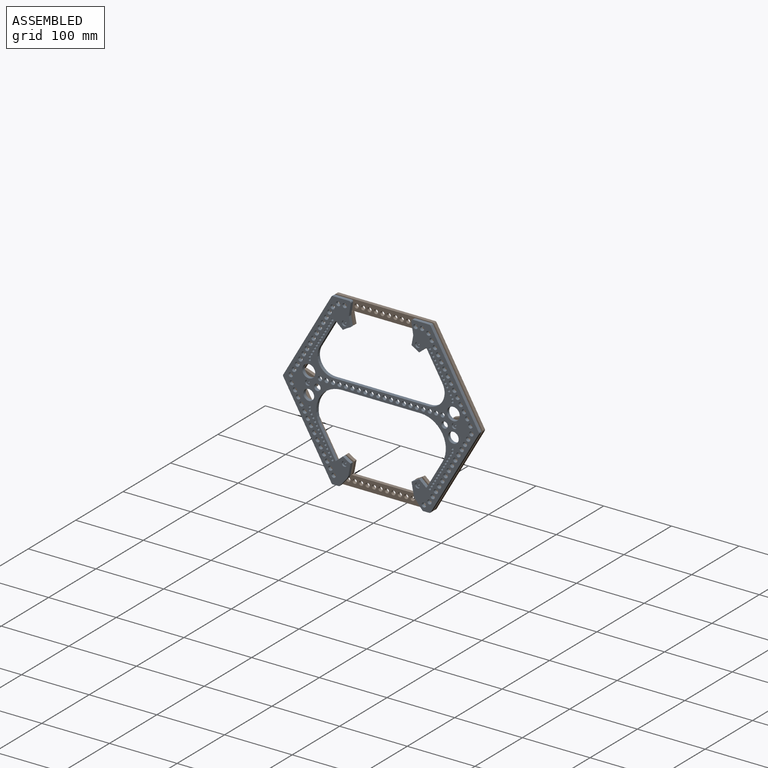
[diagram: assembled view]
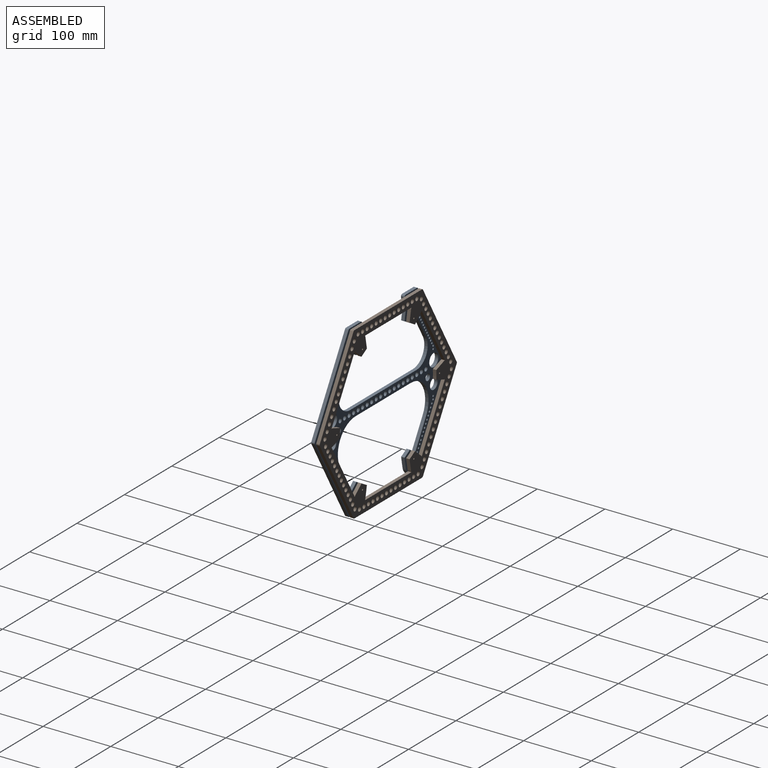
[diagram: assembled view, second angle]
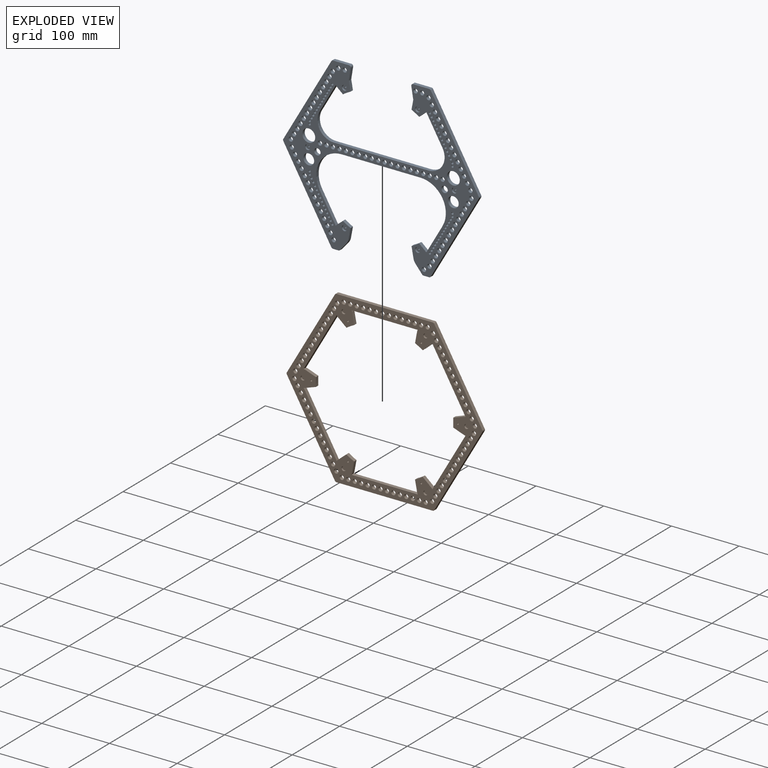
[diagram: exploded view]
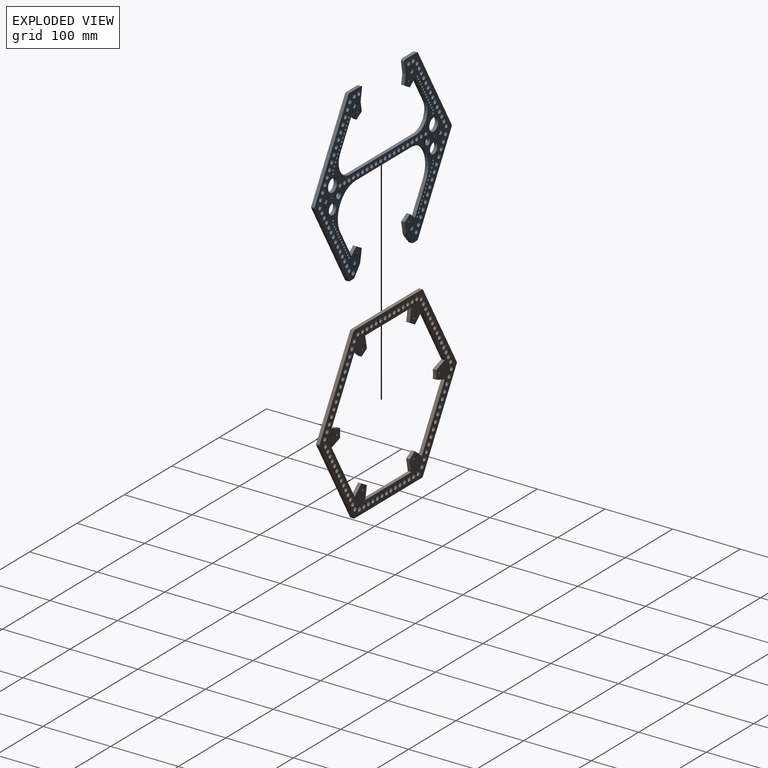
[diagram: exploded view, second angle]
ASSEMBLY  parts=2 mates=2
PART A: 225 faces, bbox 289.6x251.5x5.1 mm
  f0: plane 10.59x9.05mm, normal (-0.65,0.76,0), area 70.8mm2, adj f4,f19,f55,f161
  f1: plane 10.59x9.05mm, normal (0.65,0.76,0), area 70.8mm2, adj f4,f23,f55,f160
  f2: plane 10.59x9.05mm, normal (0.65,-0.76,0), area 70.8mm2, adj f4,f38,f55,f162
  f3: plane 10.59x9.05mm, normal (-0.65,-0.76,0), area 70.8mm2, adj f4,f42,f55,f159
  f4: plane 289.58x251.46mm, normal (0,0,-1), area 14964.6mm2, adj f0,f1,f2,f3,f5,f6,f7,f8
  f5: plane 13.85x5.08mm, normal (0.98,0.18,0), area 71.6mm2, adj f4,f6,f55,f159
  f6: plane 17.86x5.08mm, normal (0.99,-0.16,0), area 91.9mm2, adj f4,f5,f7,f55
  f7: cylinder r=2.54mm len=5.08mm, axis (0,0,-1), area 22.3mm2, adj f4,f6,f8,f55
  f8: plane 23.89x5.08mm, normal (0,1,0), area 121.4mm2, adj f4,f7,f9,f55
  f9: cylinder r=2.54mm len=5.08mm, axis (0,0,-1), area 13.5mm2, adj f4,f8,f10,f55
  f10: plane 123.19x71.12mm, normal (-0.87,0.5,0), area 722.6mm2, adj f4,f9,f11,f55
  f11: cylinder r=2.54mm len=5.08mm, axis (0,0,-1), area 13.5mm2, adj f4,f10,f12,f55
  f12: plane 123.19x71.12mm, normal (-0.87,-0.5,0), area 722.6mm2, adj f4,f11,f13,f55
  f13: cylinder r=2.54mm len=5.08mm, axis (0,0,-1), area 13.5mm2, adj f4,f12,f14,f55
  f14: plane 8.44x5.08mm, normal (0,-1,0), area 42.9mm2, adj f4,f13,f15,f55
  f15: cylinder r=2.54mm len=5.08mm, axis (0,0,-1), area 11.3mm2, adj f4,f14,f16,f55
  f16: plane 11.88x9.97mm, normal (0.77,-0.64,0), area 78.8mm2, adj f4,f15,f17,f55
  f17: cylinder r=12.7mm len=5.84mm, axis (0,0,-1), area 33.2mm2, adj f4,f16,f18,f55
  f18: plane 16.02x5.08mm, normal (0.98,-0.18,0), area 82.8mm2, adj f4,f17,f55,f161
  f19: plane 41.2x23.79mm, normal (0.87,0.5,0), area 241.7mm2, adj f0,f4,f20,f55
  f20: cylinder r=37.5mm len=56.24mm, axis (0,0,-1), area 398.9mm2, adj f4,f19,f21,f55
  f21: plane 116.53x5.08mm, normal (0,-1,0), area 592mm2, adj f4,f20,f22,f55
  f22: cylinder r=37.5mm len=56.24mm, axis (0,0,-1), area 398.9mm2, adj f4,f21,f23,f55
  f23: plane 41.2x23.79mm, normal (-0.87,0.5,0), area 241.7mm2, adj f1,f4,f22,f55
  f24: plane 16.02x5.08mm, normal (-0.98,-0.18,0), area 82.8mm2, adj f4,f25,f55,f160
  f25: cylinder r=12.7mm len=5.84mm, axis (0,0,-1), area 33.2mm2, adj f4,f24,f26,f55
  f26: plane 11.88x9.97mm, normal (-0.77,-0.64,0), area 78.8mm2, adj f4,f25,f27,f55
  f27: cylinder r=2.54mm len=5.08mm, axis (0,0,-1), area 11.3mm2, adj f4,f26,f28,f55
  f28: plane 8.44x5.08mm, normal (0,-1,0), area 42.9mm2, adj f4,f27,f29,f55
  f29: cylinder r=2.54mm len=5.08mm, axis (0,0,-1), area 13.5mm2, adj f4,f28,f30,f55
  f30: plane 123.19x71.12mm, normal (0.87,-0.5,0), area 722.6mm2, adj f4,f29,f31,f55
  f31: cylinder r=2.54mm len=5.08mm, axis (0,0,-1), area 13.5mm2, adj f4,f30,f32,f55
  f32: plane 123.19x71.12mm, normal (0.87,0.5,0), area 722.6mm2, adj f4,f31,f33,f55
  f33: cylinder r=2.54mm len=5.08mm, axis (0,0,-1), area 13.5mm2, adj f4,f32,f34,f55
  f34: plane 23.89x5.08mm, normal (0,1,0), area 121.4mm2, adj f4,f33,f35,f55
  f35: cylinder r=2.54mm len=5.08mm, axis (0,0,-1), area 22.3mm2, adj f4,f34,f36,f55
  f36: plane 17.86x5.08mm, normal (-0.99,-0.16,0), area 91.9mm2, adj f4,f35,f37,f55
  f37: plane 13.85x5.08mm, normal (-0.98,0.18,0), area 71.6mm2, adj f4,f36,f55,f162
  f38: plane 41.2x23.79mm, normal (-0.87,-0.5,0), area 241.7mm2, adj f2,f4,f39,f55
  f39: cylinder r=23.92mm len=35.88mm, axis (0,0,-1), area 254.5mm2, adj f4,f38,f40,f55
  f40: plane 140.04x5.08mm, normal (0,1,0), area 711.4mm2, adj f4,f39,f41,f55
  f41: cylinder r=23.92mm len=35.88mm, axis (0,0,-1), area 254.5mm2, adj f4,f40,f42,f55
  f42: plane 41.2x23.79mm, normal (0.87,-0.5,0), area 241.7mm2, adj f3,f4,f41,f55
  f43: cylinder r=1.08mm len=2.54mm, axis (0,0,-1), area 17.2mm2, adj f55,f73
  f44: cylinder r=1.08mm len=2.54mm, axis (0,0,-1), area 17.2mm2, adj f55,f71
  f45: cylinder r=1.08mm len=2.54mm, axis (0,0,-1), area 17.2mm2, adj f55,f69
  f46: cylinder r=3.17mm len=6.35mm, axis (0,0,-1), area 50.7mm2, adj f55,f60
  f47: cylinder r=3.17mm len=6.35mm, axis (0,0,-1), area 50.7mm2, adj f55,f57
  f48: cylinder r=3.17mm len=6.35mm, axis (0,0,-1), area 50.7mm2, adj f55,f59
  f49: cylinder r=3.17mm len=6.35mm, axis (0,0,-1), area 50.7mm2, adj f55,f61
  f50: cylinder r=1.08mm len=2.54mm, axis (0,0,-1), area 17.2mm2, adj f55,f67
  f51: cylinder r=1.08mm len=2.54mm, axis (0,0,-1), area 17.2mm2, adj f55,f65
  f52: cylinder r=3.17mm len=6.35mm, axis (0,0,-1), area 50.7mm2, adj f55,f56
  f53: cylinder r=3.17mm len=6.35mm, axis (0,0,-1), area 50.7mm2, adj f55,f58
  f54: cylinder r=1.08mm len=2.54mm, axis (0,0,-1), area 17.2mm2, adj f55,f63
  f55: plane 289.58x251.46mm, normal (0,0,1), area 15026.2mm2, adj f0,f1,f2,f3,f5,f6,f7,f8
  f56: plane 6.35x6.35mm, normal (0,0,1), area 31.7mm2, adj f52
  f57: plane 6.35x6.35mm, normal (0,0,1), area 31.7mm2, adj f47
  f58: plane 6.35x6.35mm, normal (0,0,1), area 31.7mm2, adj f53
  f59: plane 6.35x6.35mm, normal (0,0,1), area 31.7mm2, adj f48
  f60: plane 6.35x6.35mm, normal (0,0,1), area 31.7mm2, adj f46
  f61: plane 6.35x6.35mm, normal (0,0,1), area 31.7mm2, adj f49
  f62: cylinder r=3.81mm len=7.62mm, axis (0,0,-1), area 60.8mm2, adj f4,f63
  f63: plane 7.62x7.62mm, normal (0,0,-1), area 41.9mm2, adj f54,f62
  f64: cylinder r=3.81mm len=7.62mm, axis (0,0,-1), area 60.8mm2, adj f4,f65
  f65: plane 7.62x7.62mm, normal (0,0,-1), area 41.9mm2, adj f51,f64
  f66: cylinder r=3.81mm len=7.62mm, axis (0,0,-1), area 60.8mm2, adj f4,f67
  f67: plane 7.62x7.62mm, normal (0,0,-1), area 41.9mm2, adj f50,f66
  f68: cylinder r=3.81mm len=7.62mm, axis (0,0,-1), area 60.8mm2, adj f4,f69
  f69: plane 7.62x7.62mm, normal (0,0,-1), area 41.9mm2, adj f45,f68
  f70: cylinder r=3.81mm len=7.62mm, axis (0,0,-1), area 60.8mm2, adj f4,f71
  f71: plane 7.62x7.62mm, normal (0,0,-1), area 41.9mm2, adj f44,f70
  f72: cylinder r=3.81mm len=7.62mm, axis (0,0,-1), area 60.8mm2, adj f4,f73
  f73: plane 7.62x7.62mm, normal (0,0,-1), area 41.9mm2, adj f43,f72
  f74: cylinder r=3.17mm len=6.35mm, axis (0,0,1), area 101.3mm2, adj f4,f55
  f75: cylinder r=3.17mm len=6.35mm, axis (0,0,1), area 101.3mm2, adj f4,f55
  f76: cylinder r=3.17mm len=6.35mm, axis (0,0,1), area 101.3mm2, adj f4,f55
  f77: cylinder r=3.17mm len=6.35mm, axis (0,0,1), area 101.3mm2, adj f4,f55
  f78: cylinder r=3.17mm len=6.35mm, axis (0,0,1), area 101.3mm2, adj f4,f55
  f79: cylinder r=3.17mm len=6.35mm, axis (0,0,1), area 101.3mm2, adj f4,f55
  f80: cylinder r=3.17mm len=6.35mm, axis (0,0,1), area 101.3mm2, adj f4,f55
  f81: cylinder r=3.17mm len=6.35mm, axis (0,0,1), area 101.3mm2, adj f4,f55
  f82: cylinder r=3.17mm len=6.35mm, axis (0,0,1), area 101.3mm2, adj f4,f55
  f83: cylinder r=3.17mm len=6.35mm, axis (0,0,1), area 101.3mm2, adj f4,f55
  f84: cylinder r=3.17mm len=6.35mm, axis (0,0,1), area 101.3mm2, adj f4,f55
  f85: cylinder r=3.17mm len=6.35mm, axis (0,0,1), area 101.3mm2, adj f4,f55
  f86: cylinder r=3.17mm len=6.35mm, axis (0,0,1), area 101.3mm2, adj f4,f55
  f87: cylinder r=3.17mm len=6.35mm, axis (0,0,1), area 101.3mm2, adj f4,f55
  f88: cylinder r=3.17mm len=6.35mm, axis (0,0,1), area 101.3mm2, adj f4,f55
  f89: cylinder r=3.17mm len=6.35mm, axis (0,0,1), area 101.3mm2, adj f4,f55
  f90: cylinder r=3.17mm len=6.35mm, axis (0,0,1), area 101.3mm2, adj f4,f55
  f91: cylinder r=7.94mm len=15.88mm, axis (0,0,1), area 253.4mm2, adj f4,f55
  f92: cylinder r=9.53mm len=19.05mm, axis (0,0,1), area 304mm2, adj f4,f55
  f93: cylinder r=9.53mm len=19.05mm, axis (0,0,1), area 304mm2, adj f4,f55
  f94: cylinder r=7.94mm len=15.88mm, axis (0,0,1), area 253.4mm2, adj f4,f55
  f95: cylinder r=3.17mm len=6.35mm, axis (0,0,1), area 101.3mm2, adj f4,f55
  f96: cylinder r=3.17mm len=6.35mm, axis (0,0,1), area 101.3mm2, adj f4,f55
  f97: cylinder r=3.17mm len=6.35mm, axis (0,0,1), area 101.3mm2, adj f4,f55
  f98: cylinder r=3.17mm len=6.35mm, axis (0,0,1), area 101.3mm2, adj f4,f55
  f99: cylinder r=3.17mm len=6.35mm, axis (0,0,1), area 101.3mm2, adj f4,f55
  f100: cylinder r=3.17mm len=6.35mm, axis (0,0,1), area 101.3mm2, adj f4,f55
  f101: cylinder r=3.17mm len=6.35mm, axis (0,0,1), area 101.3mm2, adj f4,f55
  f102: cylinder r=3.17mm len=6.35mm, axis (0,0,1), area 101.3mm2, adj f4,f55
  f103: cylinder r=3.17mm len=6.35mm, axis (0,0,1), area 101.3mm2, adj f4,f55
  f104: cylinder r=3.17mm len=6.35mm, axis (0,0,1), area 101.3mm2, adj f4,f55
  f105: cylinder r=3.17mm len=6.35mm, axis (0,0,1), area 101.3mm2, adj f4,f55
  f106: cylinder r=3.17mm len=6.35mm, axis (0,0,1), area 101.3mm2, adj f4,f55
  f107: cylinder r=3.17mm len=6.35mm, axis (0,0,1), area 101.3mm2, adj f4,f55
  f108: cylinder r=3.17mm len=6.35mm, axis (0,0,1), area 101.3mm2, adj f4,f55
  f109: cylinder r=3.17mm len=6.35mm, axis (0,0,1), area 101.3mm2, adj f4,f55
  f110: cylinder r=3.17mm len=6.35mm, axis (0,0,1), area 101.3mm2, adj f4,f55
  f111: cylinder r=3.17mm len=6.35mm, axis (0,0,1), area 101.3mm2, adj f4,f55
  f112: cylinder r=3.17mm len=6.35mm, axis (0,0,1), area 101.3mm2, adj f4,f55
  f113: cylinder r=3.17mm len=6.35mm, axis (0,0,1), area 101.3mm2, adj f4,f55
  f114: cylinder r=3.17mm len=6.35mm, axis (0,0,1), area 101.3mm2, adj f4,f55
  f115: cylinder r=3.17mm len=6.35mm, axis (0,0,1), area 101.3mm2, adj f4,f55
  f116: cylinder r=3.17mm len=6.35mm, axis (0,0,1), area 101.3mm2, adj f4,f55
  f117: cylinder r=3.17mm len=6.35mm, axis (0,0,1), area 101.3mm2, adj f4,f55
  f118: cylinder r=3.17mm len=6.35mm, axis (0,0,1), area 101.3mm2, adj f4,f55
  f119: cylinder r=3.17mm len=6.35mm, axis (0,0,1), area 101.3mm2, adj f4,f55
  f120: cylinder r=3.17mm len=6.35mm, axis (0,0,1), area 101.3mm2, adj f4,f55
  f121: cylinder r=3.17mm len=6.35mm, axis (0,0,1), area 101.3mm2, adj f4,f55
  f122: cylinder r=3.17mm len=6.35mm, axis (0,0,1), area 101.3mm2, adj f4,f55
  f123: cylinder r=3.17mm len=6.35mm, axis (0,0,1), area 101.3mm2, adj f4,f55
  f124: cylinder r=3.17mm len=6.35mm, axis (0,0,1), area 101.3mm2, adj f4,f55
  f125: cylinder r=3.17mm len=6.35mm, axis (0,0,1), area 101.3mm2, adj f4,f55
  f126: cylinder r=3.17mm len=6.35mm, axis (0,0,1), area 101.3mm2, adj f4,f55
  f127: cylinder r=3.17mm len=6.35mm, axis (0,0,1), area 101.3mm2, adj f4,f55
  f128: cylinder r=3.17mm len=6.35mm, axis (0,0,1), area 101.3mm2, adj f4,f55
  f129: cylinder r=3.17mm len=6.35mm, axis (0,0,1), area 101.3mm2, adj f4,f55
  f130: cylinder r=3.17mm len=6.35mm, axis (0,0,1), area 101.3mm2, adj f4,f55
  f131: cylinder r=3.17mm len=6.35mm, axis (0,0,1), area 101.3mm2, adj f4,f55
  f132: cylinder r=3.17mm len=6.35mm, axis (0,0,1), area 101.3mm2, adj f4,f55
  f133: cylinder r=3.17mm len=6.35mm, axis (0,0,1), area 101.3mm2, adj f4,f55
  f134: cylinder r=3.17mm len=6.35mm, axis (0,0,1), area 101.3mm2, adj f4,f55
  f135: cylinder r=3.17mm len=6.35mm, axis (0,0,1), area 101.3mm2, adj f4,f55
  f136: cylinder r=3.17mm len=6.35mm, axis (0,0,1), area 101.3mm2, adj f4,f55
  f137: cylinder r=3.17mm len=6.35mm, axis (0,0,1), area 101.3mm2, adj f4,f55
  f138: cylinder r=3.17mm len=6.35mm, axis (0,0,1), area 101.3mm2, adj f4,f55
  f139: cylinder r=3.17mm len=6.35mm, axis (0,0,1), area 101.3mm2, adj f4,f55
  f140: cylinder r=3.17mm len=6.35mm, axis (0,0,1), area 101.3mm2, adj f4,f55
  f141: cylinder r=3.17mm len=6.35mm, axis (0,0,1), area 101.3mm2, adj f4,f55
  f142: cylinder r=3.17mm len=6.35mm, axis (0,0,1), area 101.3mm2, adj f4,f55
  f143: cylinder r=3.17mm len=6.35mm, axis (0,0,1), area 101.3mm2, adj f4,f55
  f144: cylinder r=3.17mm len=6.35mm, axis (0,0,1), area 101.3mm2, adj f4,f55
  f145: cylinder r=3.17mm len=6.35mm, axis (0,0,1), area 101.3mm2, adj f4,f55
  f146: cylinder r=3.17mm len=6.35mm, axis (0,0,1), area 101.3mm2, adj f4,f55
  f147: cylinder r=3.17mm len=6.35mm, axis (0,0,1), area 101.3mm2, adj f4,f55
  f148: cylinder r=3.17mm len=6.35mm, axis (0,0,1), area 101.3mm2, adj f4,f55
  f149: cylinder r=3.17mm len=6.35mm, axis (0,0,1), area 101.3mm2, adj f4,f55
  f150: cylinder r=3.17mm len=6.35mm, axis (0,0,1), area 101.3mm2, adj f4,f55
  f151: cylinder r=3.17mm len=6.35mm, axis (0,0,1), area 101.3mm2, adj f4,f55
  f152: cylinder r=3.17mm len=6.35mm, axis (0,0,1), area 101.3mm2, adj f4,f55
  f153: cylinder r=3.17mm len=6.35mm, axis (0,0,1), area 101.3mm2, adj f4,f55
  f154: cylinder r=3.17mm len=6.35mm, axis (0,0,1), area 101.3mm2, adj f4,f55
  f155: cylinder r=3.17mm len=6.35mm, axis (0,0,1), area 101.3mm2, adj f4,f55
  f156: cylinder r=3.17mm len=6.35mm, axis (0,0,1), area 101.3mm2, adj f4,f55
  f157: cylinder r=3.17mm len=6.35mm, axis (0,0,1), area 101.3mm2, adj f4,f55
  f158: cylinder r=3.17mm len=6.35mm, axis (0,0,1), area 101.3mm2, adj f4,f55
  f159: cylinder r=101.6mm len=11.33mm, axis (0,0,1), area 66.5mm2, adj f3,f4,f5,f55
  f160: cylinder r=101.6mm len=11.33mm, axis (0,0,1), area 66.5mm2, adj f1,f4,f24,f55
  f161: cylinder r=101.6mm len=11.33mm, axis (0,0,1), area 66.5mm2, adj f0,f4,f18,f55
  f162: cylinder r=101.6mm len=11.33mm, axis (0,0,1), area 66.5mm2, adj f2,f4,f37,f55
  f163: cylinder r=1.59mm len=5.08mm, axis (0,0,1), area 50.7mm2, adj f4,f55
  f164: cylinder r=1.59mm len=5.08mm, axis (0,0,1), area 50.7mm2, adj f4,f55
  f165: cylinder r=1.59mm len=5.08mm, axis (0,0,1), area 50.7mm2, adj f4,f55
  f166: cylinder r=1.59mm len=5.08mm, axis (0,0,1), area 50.7mm2, adj f4,f55
  f167: cylinder r=1.59mm len=5.08mm, axis (0,0,1), area 50.7mm2, adj f4,f55
  f168: cylinder r=1.59mm len=5.08mm, axis (0,0,1), area 50.7mm2, adj f4,f55
  f169: cylinder r=1.59mm len=5.08mm, axis (0,0,1), area 50.7mm2, adj f4,f55
  f170: cylinder r=1.59mm len=5.08mm, axis (0,0,1), area 50.7mm2, adj f4,f55
  f171: cylinder r=1.59mm len=5.08mm, axis (0,0,1), area 50.7mm2, adj f4,f55
  f172: cylinder r=1.59mm len=5.08mm, axis (0,0,1), area 50.7mm2, adj f4,f55
  f173: cylinder r=1.59mm len=5.08mm, axis (0,0,1), area 50.7mm2, adj f4,f55
  f174: cylinder r=1.59mm len=5.08mm, axis (0,0,1), area 50.7mm2, adj f4,f55
  f175: cylinder r=1.59mm len=5.08mm, axis (0,0,1), area 50.7mm2, adj f4,f55
  f176: cylinder r=1.59mm len=5.08mm, axis (0,0,1), area 50.7mm2, adj f4,f55
  f177: cylinder r=1.59mm len=5.08mm, axis (0,0,1), area 50.7mm2, adj f4,f55
  f178: cylinder r=1.59mm len=5.08mm, axis (0,0,1), area 50.7mm2, adj f4,f55
  f179: cylinder r=1.59mm len=5.08mm, axis (0,0,1), area 50.7mm2, adj f4,f55
  f180: cylinder r=1.59mm len=5.08mm, axis (0,0,1), area 50.7mm2, adj f4,f55
  f181: cylinder r=1.59mm len=5.08mm, axis (0,0,1), area 50.7mm2, adj f4,f55
  f182: cylinder r=1.59mm len=5.08mm, axis (0,0,1), area 50.7mm2, adj f4,f55
  f183: cylinder r=1.59mm len=5.08mm, axis (0,0,1), area 50.7mm2, adj f4,f55
  f184: cylinder r=1.59mm len=5.08mm, axis (0,0,1), area 50.7mm2, adj f4,f55
  f185: cylinder r=1.59mm len=5.08mm, axis (0,0,1), area 50.7mm2, adj f4,f55
  f186: cylinder r=1.59mm len=5.08mm, axis (0,0,1), area 50.7mm2, adj f4,f55
  f187: cylinder r=1.59mm len=5.08mm, axis (0,0,1), area 50.7mm2, adj f4,f55
  f188: cylinder r=1.59mm len=5.08mm, axis (0,0,1), area 50.7mm2, adj f4,f55
  f189: cylinder r=1.59mm len=5.08mm, axis (0,0,1), area 50.7mm2, adj f4,f55
  f190: cylinder r=1.59mm len=5.08mm, axis (0,0,1), area 50.7mm2, adj f4,f55
  f191: cylinder r=1.59mm len=5.08mm, axis (0,0,1), area 50.7mm2, adj f4,f55
  f192: cylinder r=1.59mm len=5.08mm, axis (0,0,1), area 50.7mm2, adj f4,f55
  f193: cylinder r=1.59mm len=5.08mm, axis (0,0,1), area 50.7mm2, adj f4,f55
  f194: cylinder r=1.59mm len=5.08mm, axis (0,0,1), area 50.7mm2, adj f4,f55
  f195: cylinder r=1.59mm len=5.08mm, axis (0,0,1), area 50.7mm2, adj f4,f55
  f196: cylinder r=1.59mm len=5.08mm, axis (0,0,1), area 50.7mm2, adj f4,f55
  f197: cylinder r=1.59mm len=5.08mm, axis (0,0,1), area 50.7mm2, adj f4,f55
  f198: cylinder r=1.59mm len=5.08mm, axis (0,0,1), area 50.7mm2, adj f4,f55
  f199: cylinder r=1.59mm len=5.08mm, axis (0,0,1), area 50.7mm2, adj f4,f55
  f200: cylinder r=1.59mm len=5.08mm, axis (0,0,1), area 50.7mm2, adj f4,f55
  f201: cylinder r=1.59mm len=5.08mm, axis (0,0,1), area 50.7mm2, adj f4,f55
  f202: cylinder r=1.59mm len=5.08mm, axis (0,0,1), area 50.7mm2, adj f4,f55
  f203: cylinder r=1.59mm len=5.08mm, axis (0,0,1), area 50.7mm2, adj f4,f55
  f204: cylinder r=1.59mm len=5.08mm, axis (0,0,1), area 50.7mm2, adj f4,f55
  f205: cylinder r=1.59mm len=5.08mm, axis (0,0,1), area 50.7mm2, adj f4,f55
  f206: cylinder r=1.59mm len=5.08mm, axis (0,0,1), area 50.7mm2, adj f4,f55
  f207: cylinder r=1.59mm len=5.08mm, axis (0,0,1), area 50.7mm2, adj f4,f55
  f208: cylinder r=1.59mm len=5.08mm, axis (0,0,1), area 50.7mm2, adj f4,f55
  f209: cylinder r=1.59mm len=5.08mm, axis (0,0,1), area 50.7mm2, adj f4,f55
  f210: cylinder r=1.59mm len=5.08mm, axis (0,0,1), area 50.7mm2, adj f4,f55
  f211: cylinder r=1.59mm len=5.08mm, axis (0,0,1), area 50.7mm2, adj f4,f55
  f212: cylinder r=1.59mm len=5.08mm, axis (0,0,1), area 50.7mm2, adj f4,f55
  f213: cylinder r=1.59mm len=5.08mm, axis (0,0,1), area 50.7mm2, adj f4,f55
  f214: cylinder r=1.59mm len=5.08mm, axis (0,0,1), area 50.7mm2, adj f4,f55
  f215: cylinder r=1.59mm len=5.08mm, axis (0,0,1), area 50.7mm2, adj f4,f55
  f216: cylinder r=1.59mm len=5.08mm, axis (0,0,1), area 50.7mm2, adj f4,f55
  f217: cylinder r=1.59mm len=5.08mm, axis (0,0,1), area 50.7mm2, adj f4,f55
  f218: cylinder r=1.59mm len=5.08mm, axis (0,0,1), area 50.7mm2, adj f4,f55
  f219: cylinder r=1.59mm len=5.08mm, axis (0,0,1), area 50.7mm2, adj f4,f55
  f220: cylinder r=1.59mm len=5.08mm, axis (0,0,1), area 50.7mm2, adj f4,f55
  f221: cylinder r=1.59mm len=5.08mm, axis (0,0,1), area 50.7mm2, adj f4,f55
  f222: cylinder r=1.59mm len=5.08mm, axis (0,0,1), area 50.7mm2, adj f4,f55
  f223: cylinder r=4.76mm len=9.53mm, axis (0,0,1), area 152mm2, adj f4,f55
  f224: cylinder r=4.76mm len=9.53mm, axis (0,0,1), area 152mm2, adj f4,f55
PART B: 158 faces, bbox 289.6x5.1x251.5 mm
  f0: plane 289.58x251.46mm, normal (0,1,0), area 12929.7mm2, adj f1,f2,f3,f4,f5,f6,f7,f8
  f1: plane 142.25x5.08mm, normal (0,0,-1), area 722.6mm2, adj f0,f2,f60,f61
  f2: cylinder r=2.54mm len=5.08mm, axis (0,1,0), area 13.5mm2, adj f0,f1,f3,f61
  f3: plane 123.19x71.12mm, normal (0.87,0,-0.5), area 722.6mm2, adj f0,f2,f4,f61
  f4: cylinder r=2.54mm len=5.08mm, axis (0,1,0), area 13.5mm2, adj f0,f3,f5,f61
  f5: plane 123.19x71.12mm, normal (0.87,0,0.5), area 722.6mm2, adj f0,f4,f6,f61
  f6: cylinder r=2.54mm len=5.08mm, axis (0,1,0), area 13.5mm2, adj f0,f5,f7,f61
  f7: plane 142.25x5.08mm, normal (0,0,1), area 722.6mm2, adj f0,f6,f8,f61
  f8: cylinder r=2.54mm len=5.08mm, axis (0,1,0), area 13.5mm2, adj f0,f7,f9,f61
  f9: plane 123.19x71.12mm, normal (-0.87,0,0.5), area 722.6mm2, adj f0,f8,f10,f61
  f10: cylinder r=2.54mm len=5.08mm, axis (0,1,0), area 13.5mm2, adj f0,f9,f11,f61
  f11: plane 123.19x71.12mm, normal (-0.87,0,-0.5), area 722.6mm2, adj f0,f10,f60,f61
  f12: cylinder r=12.7mm len=5.08mm, axis (0,1,0), area 26.5mm2, adj f0,f13,f59,f61
  f13: plane 97.7x5.08mm, normal (0,0,-1), area 496.3mm2, adj f0,f12,f14,f61
  f14: cylinder r=12.7mm len=5.08mm, axis (0,1,0), area 14.7mm2, adj f0,f13,f15,f61
  f15: plane 16.02x5.08mm, normal (-0.98,0,0.18), area 82.8mm2, adj f0,f14,f61,f157
  f16: plane 11.49x9.83mm, normal (0.65,0,-0.76), area 76.8mm2, adj f0,f17,f61,f157
  f17: plane 5.08x1.01mm, normal (-0.5,0,0.87), area 5.9mm2, adj f0,f16,f18,f61
  f18: cylinder r=12.7mm len=5.08mm, axis (0,1,0), area 26.5mm2, adj f0,f17,f19,f61
  f19: plane 84.61x48.85mm, normal (-0.87,0,-0.5), area 496.3mm2, adj f0,f18,f20,f61
  f20: cylinder r=12.7mm len=5.08mm, axis (0,1,0), area 14.7mm2, adj f0,f19,f21,f61
  f21: plane 15.36x5.43mm, normal (-0.33,0,0.94), area 82.8mm2, adj f0,f20,f61,f156
  f22: plane 14.26x5.08mm, normal (-0.33,0,-0.94), area 76.8mm2, adj f0,f23,f61,f156
  f23: plane 5.08x1.01mm, normal (0.5,0,0.87), area 5.9mm2, adj f0,f22,f24,f61
  f24: cylinder r=12.7mm len=5.08mm, axis (0,1,0), area 26.5mm2, adj f0,f23,f25,f61
  f25: plane 84.61x48.85mm, normal (-0.87,0,0.5), area 496.3mm2, adj f0,f24,f26,f61
  f26: cylinder r=12.7mm len=5.08mm, axis (0,1,0), area 26.5mm2, adj f0,f25,f27,f61
  f27: plane 5.08x1.01mm, normal (-0.5,0,-0.87), area 5.9mm2, adj f0,f26,f28,f61
  f28: plane 11.49x9.83mm, normal (0.65,0,0.76), area 76.8mm2, adj f0,f27,f61,f155
  f29: plane 16.02x5.08mm, normal (-0.98,0,-0.18), area 82.8mm2, adj f0,f30,f61,f155
  f30: cylinder r=12.7mm len=5.08mm, axis (0,1,0), area 14.7mm2, adj f0,f29,f31,f61
  f31: plane 97.7x5.08mm, normal (0,0,1), area 496.3mm2, adj f0,f30,f32,f61
  f32: cylinder r=12.7mm len=5.08mm, axis (0,1,0), area 14.7mm2, adj f0,f31,f33,f61
  f33: plane 16.02x5.08mm, normal (0.98,0,-0.18), area 82.8mm2, adj f0,f32,f61,f154
  f34: plane 11.49x9.83mm, normal (-0.65,0,0.76), area 76.8mm2, adj f0,f35,f61,f154
  f35: plane 5.08x1.01mm, normal (0.5,0,-0.87), area 5.9mm2, adj f0,f34,f36,f61
  f36: cylinder r=12.7mm len=5.08mm, axis (0,1,0), area 26.5mm2, adj f0,f35,f37,f61
  f37: plane 84.61x48.85mm, normal (0.87,0,0.5), area 496.3mm2, adj f0,f36,f38,f61
  f38: cylinder r=12.7mm len=5.08mm, axis (0,1,0), area 26.5mm2, adj f0,f37,f39,f61
  f39: plane 5.08x1.01mm, normal (-0.5,0,0.87), area 5.9mm2, adj f0,f38,f40,f61
  f40: plane 14.26x5.08mm, normal (0.33,0,-0.94), area 76.8mm2, adj f0,f39,f61,f153
  f41: plane 15.36x5.43mm, normal (0.33,0,0.94), area 82.8mm2, adj f0,f42,f61,f153
  f42: cylinder r=12.7mm len=5.08mm, axis (0,1,0), area 14.7mm2, adj f0,f41,f43,f61
  f43: plane 84.61x48.85mm, normal (0.87,0,-0.5), area 496.3mm2, adj f0,f42,f44,f61
  f44: cylinder r=12.7mm len=5.08mm, axis (0,1,0), area 14.7mm2, adj f0,f43,f45,f61
  f45: plane 12.38x10.59mm, normal (-0.65,0,-0.76), area 82.8mm2, adj f0,f44,f61,f152
  f46: plane 14.87x5.08mm, normal (0.98,0,0.18), area 76.8mm2, adj f0,f59,f61,f152
  f47: cylinder r=3.17mm len=6.35mm, axis (0,1,0), area 50.7mm2, adj f61,f65
  f48: cylinder r=1.21mm len=5.08mm, axis (0,1,0), area 38.5mm2, adj f0,f61
  f49: cylinder r=3.17mm len=6.35mm, axis (0,1,0), area 50.7mm2, adj f61,f66
  f50: cylinder r=1.21mm len=5.08mm, axis (0,1,0), area 38.5mm2, adj f0,f61
  f51: cylinder r=3.17mm len=6.35mm, axis (0,1,0), area 50.7mm2, adj f61,f67
  f52: cylinder r=1.21mm len=5.08mm, axis (0,1,0), area 38.5mm2, adj f0,f61
  f53: cylinder r=3.17mm len=6.35mm, axis (0,1,0), area 50.7mm2, adj f61,f64
  f54: cylinder r=1.21mm len=5.08mm, axis (0,1,0), area 38.5mm2, adj f0,f61
  f55: cylinder r=3.17mm len=6.35mm, axis (0,1,0), area 50.7mm2, adj f61,f63
  f56: cylinder r=1.21mm len=5.08mm, axis (0,1,0), area 38.5mm2, adj f0,f61
  f57: cylinder r=3.17mm len=6.35mm, axis (0,1,0), area 50.7mm2, adj f61,f62
  f58: cylinder r=1.21mm len=5.08mm, axis (0,1,0), area 38.5mm2, adj f0,f61
  f59: plane 5.08x1.17mm, normal (-1,0,0), area 5.9mm2, adj f0,f12,f46,f61
  f60: cylinder r=2.54mm len=5.08mm, axis (0,1,0), area 13.5mm2, adj f0,f1,f11,f61
  f61: plane 289.58x251.46mm, normal (0,-1,0), area 12739.7mm2, adj f1,f2,f3,f4,f5,f6,f7,f8
  f62: plane 6.35x6.35mm, normal (0,-1,0), area 31.7mm2, adj f57
  f63: plane 6.35x6.35mm, normal (0,-1,0), area 31.7mm2, adj f55
  f64: plane 6.35x6.35mm, normal (0,-1,0), area 31.7mm2, adj f53
  f65: plane 6.35x6.35mm, normal (0,-1,0), area 31.7mm2, adj f47
  f66: plane 6.35x6.35mm, normal (0,-1,0), area 31.7mm2, adj f49
  f67: plane 6.35x6.35mm, normal (0,-1,0), area 31.7mm2, adj f51
  f68: cylinder r=3.17mm len=6.35mm, axis (0,-1,0), area 101.3mm2, adj f0,f61
  f69: cylinder r=3.17mm len=6.35mm, axis (0,-1,0), area 101.3mm2, adj f0,f61
  f70: cylinder r=3.17mm len=6.35mm, axis (0,-1,0), area 101.3mm2, adj f0,f61
  f71: cylinder r=3.17mm len=6.35mm, axis (0,-1,0), area 101.3mm2, adj f0,f61
  f72: cylinder r=3.17mm len=6.35mm, axis (0,-1,0), area 101.3mm2, adj f0,f61
  f73: cylinder r=3.17mm len=6.35mm, axis (0,-1,0), area 101.3mm2, adj f0,f61
  f74: cylinder r=3.17mm len=6.35mm, axis (0,-1,0), area 101.3mm2, adj f0,f61
  f75: cylinder r=3.17mm len=6.35mm, axis (0,-1,0), area 101.3mm2, adj f0,f61
  f76: cylinder r=3.17mm len=6.35mm, axis (0,-1,0), area 101.3mm2, adj f0,f61
  f77: cylinder r=3.17mm len=6.35mm, axis (0,-1,0), area 101.3mm2, adj f0,f61
  f78: cylinder r=3.17mm len=6.35mm, axis (0,-1,0), area 101.3mm2, adj f0,f61
  f79: cylinder r=3.17mm len=6.35mm, axis (0,-1,0), area 101.3mm2, adj f0,f61
  f80: cylinder r=3.17mm len=6.35mm, axis (0,-1,0), area 101.3mm2, adj f0,f61
  f81: cylinder r=3.17mm len=6.35mm, axis (0,-1,0), area 101.3mm2, adj f0,f61
  f82: cylinder r=3.17mm len=6.35mm, axis (0,-1,0), area 101.3mm2, adj f0,f61
  f83: cylinder r=3.17mm len=6.35mm, axis (0,-1,0), area 101.3mm2, adj f0,f61
  f84: cylinder r=3.17mm len=6.35mm, axis (0,-1,0), area 101.3mm2, adj f0,f61
  f85: cylinder r=3.17mm len=6.35mm, axis (0,-1,0), area 101.3mm2, adj f0,f61
  f86: cylinder r=3.17mm len=6.35mm, axis (0,-1,0), area 101.3mm2, adj f0,f61
  f87: cylinder r=3.17mm len=6.35mm, axis (0,-1,0), area 101.3mm2, adj f0,f61
  f88: cylinder r=3.17mm len=6.35mm, axis (0,-1,0), area 101.3mm2, adj f0,f61
  f89: cylinder r=3.17mm len=6.35mm, axis (0,-1,0), area 101.3mm2, adj f0,f61
  f90: cylinder r=3.17mm len=6.35mm, axis (0,-1,0), area 101.3mm2, adj f0,f61
  f91: cylinder r=3.17mm len=6.35mm, axis (0,-1,0), area 101.3mm2, adj f0,f61
  f92: cylinder r=3.17mm len=6.35mm, axis (0,-1,0), area 101.3mm2, adj f0,f61
  f93: cylinder r=3.17mm len=6.35mm, axis (0,-1,0), area 101.3mm2, adj f0,f61
  f94: cylinder r=3.17mm len=6.35mm, axis (0,-1,0), area 101.3mm2, adj f0,f61
  f95: cylinder r=3.17mm len=6.35mm, axis (0,-1,0), area 101.3mm2, adj f0,f61
  f96: cylinder r=3.17mm len=6.35mm, axis (0,-1,0), area 101.3mm2, adj f0,f61
  f97: cylinder r=3.17mm len=6.35mm, axis (0,-1,0), area 101.3mm2, adj f0,f61
  f98: cylinder r=3.17mm len=6.35mm, axis (0,-1,0), area 101.3mm2, adj f0,f61
  f99: cylinder r=3.17mm len=6.35mm, axis (0,-1,0), area 101.3mm2, adj f0,f61
  f100: cylinder r=3.17mm len=6.35mm, axis (0,-1,0), area 101.3mm2, adj f0,f61
  f101: cylinder r=3.17mm len=6.35mm, axis (0,-1,0), area 101.3mm2, adj f0,f61
  f102: cylinder r=3.17mm len=6.35mm, axis (0,-1,0), area 101.3mm2, adj f0,f61
  f103: cylinder r=3.17mm len=6.35mm, axis (0,-1,0), area 101.3mm2, adj f0,f61
  f104: cylinder r=3.17mm len=6.35mm, axis (0,-1,0), area 101.3mm2, adj f0,f61
  f105: cylinder r=3.17mm len=6.35mm, axis (0,-1,0), area 101.3mm2, adj f0,f61
  f106: cylinder r=3.17mm len=6.35mm, axis (0,-1,0), area 101.3mm2, adj f0,f61
  f107: cylinder r=3.17mm len=6.35mm, axis (0,-1,0), area 101.3mm2, adj f0,f61
  f108: cylinder r=3.17mm len=6.35mm, axis (0,-1,0), area 101.3mm2, adj f0,f61
  f109: cylinder r=3.17mm len=6.35mm, axis (0,-1,0), area 101.3mm2, adj f0,f61
  f110: cylinder r=3.17mm len=6.35mm, axis (0,-1,0), area 101.3mm2, adj f0,f61
  f111: cylinder r=3.17mm len=6.35mm, axis (0,-1,0), area 101.3mm2, adj f0,f61
  f112: cylinder r=3.17mm len=6.35mm, axis (0,-1,0), area 101.3mm2, adj f0,f61
  f113: cylinder r=3.17mm len=6.35mm, axis (0,-1,0), area 101.3mm2, adj f0,f61
  f114: cylinder r=3.17mm len=6.35mm, axis (0,-1,0), area 101.3mm2, adj f0,f61
  f115: cylinder r=3.17mm len=6.35mm, axis (0,-1,0), area 101.3mm2, adj f0,f61
  f116: cylinder r=3.17mm len=6.35mm, axis (0,-1,0), area 101.3mm2, adj f0,f61
  f117: cylinder r=3.17mm len=6.35mm, axis (0,-1,0), area 101.3mm2, adj f0,f61
  f118: cylinder r=3.17mm len=6.35mm, axis (0,-1,0), area 101.3mm2, adj f0,f61
  f119: cylinder r=3.17mm len=6.35mm, axis (0,-1,0), area 101.3mm2, adj f0,f61
  f120: cylinder r=3.17mm len=6.35mm, axis (0,-1,0), area 101.3mm2, adj f0,f61
  f121: cylinder r=3.17mm len=6.35mm, axis (0,-1,0), area 101.3mm2, adj f0,f61
  f122: cylinder r=3.17mm len=6.35mm, axis (0,-1,0), area 101.3mm2, adj f0,f61
  f123: cylinder r=3.17mm len=6.35mm, axis (0,-1,0), area 101.3mm2, adj f0,f61
  f124: cylinder r=3.17mm len=6.35mm, axis (0,-1,0), area 101.3mm2, adj f0,f61
  f125: cylinder r=3.17mm len=6.35mm, axis (0,-1,0), area 101.3mm2, adj f0,f61
  f126: cylinder r=3.17mm len=6.35mm, axis (0,-1,0), area 101.3mm2, adj f0,f61
  f127: cylinder r=3.17mm len=6.35mm, axis (0,-1,0), area 101.3mm2, adj f0,f61
  f128: cylinder r=3.17mm len=6.35mm, axis (0,-1,0), area 101.3mm2, adj f0,f61
  f129: cylinder r=3.17mm len=6.35mm, axis (0,-1,0), area 101.3mm2, adj f0,f61
  f130: cylinder r=3.17mm len=6.35mm, axis (0,-1,0), area 101.3mm2, adj f0,f61
  f131: cylinder r=3.17mm len=6.35mm, axis (0,-1,0), area 101.3mm2, adj f0,f61
  f132: cylinder r=3.17mm len=6.35mm, axis (0,-1,0), area 101.3mm2, adj f0,f61
  f133: cylinder r=3.17mm len=6.35mm, axis (0,-1,0), area 101.3mm2, adj f0,f61
  f134: cylinder r=3.17mm len=6.35mm, axis (0,-1,0), area 101.3mm2, adj f0,f61
  f135: cylinder r=3.17mm len=6.35mm, axis (0,-1,0), area 101.3mm2, adj f0,f61
  f136: cylinder r=3.17mm len=6.35mm, axis (0,-1,0), area 101.3mm2, adj f0,f61
  f137: cylinder r=3.17mm len=6.35mm, axis (0,-1,0), area 101.3mm2, adj f0,f61
  f138: cylinder r=3.17mm len=6.35mm, axis (0,-1,0), area 101.3mm2, adj f0,f61
  f139: cylinder r=3.17mm len=6.35mm, axis (0,-1,0), area 101.3mm2, adj f0,f61
  f140: cylinder r=3.17mm len=6.35mm, axis (0,-1,0), area 101.3mm2, adj f0,f61
  f141: cylinder r=3.17mm len=6.35mm, axis (0,-1,0), area 101.3mm2, adj f0,f61
  f142: cylinder r=3.17mm len=6.35mm, axis (0,-1,0), area 101.3mm2, adj f0,f61
  f143: cylinder r=3.17mm len=6.35mm, axis (0,-1,0), area 101.3mm2, adj f0,f61
  f144: cylinder r=3.17mm len=6.35mm, axis (0,-1,0), area 101.3mm2, adj f0,f61
  f145: cylinder r=3.17mm len=6.35mm, axis (0,-1,0), area 101.3mm2, adj f0,f61
  f146: cylinder r=3.17mm len=6.35mm, axis (0,-1,0), area 101.3mm2, adj f0,f61
  f147: cylinder r=3.17mm len=6.35mm, axis (0,-1,0), area 101.3mm2, adj f0,f61
  f148: cylinder r=3.17mm len=6.35mm, axis (0,-1,0), area 101.3mm2, adj f0,f61
  f149: cylinder r=3.17mm len=6.35mm, axis (0,-1,0), area 101.3mm2, adj f0,f61
  f150: cylinder r=3.17mm len=6.35mm, axis (0,-1,0), area 101.3mm2, adj f0,f61
  f151: cylinder r=3.17mm len=6.35mm, axis (0,-1,0), area 101.3mm2, adj f0,f61
  f152: cylinder r=101.6mm len=11.33mm, axis (0,-1,0), area 66.5mm2, adj f0,f45,f46,f61
  f153: cylinder r=101.6mm len=13.09mm, axis (0,-1,0), area 66.5mm2, adj f0,f40,f41,f61
  f154: cylinder r=101.6mm len=11.33mm, axis (0,-1,0), area 66.5mm2, adj f0,f33,f34,f61
  f155: cylinder r=101.6mm len=11.33mm, axis (0,-1,0), area 66.5mm2, adj f0,f28,f29,f61
  f156: cylinder r=101.6mm len=13.09mm, axis (0,-1,0), area 66.5mm2, adj f0,f21,f22,f61
  f157: cylinder r=101.6mm len=11.33mm, axis (0,-1,0), area 66.5mm2, adj f0,f15,f16,f61
PLACE A rot(axis=(0,0.71,0.71),180deg) t=(0,-12.53,0)mm
PLACE B at identity fixed
MATE planar A.f8 <-> B.f7  axis (0,0,1) through (59.18,-9.99,125.73)mm
MATE planar B.f5 <-> A.f10  axis (0.87,0,0.5) through (108.89,-2.54,62.86)mm
